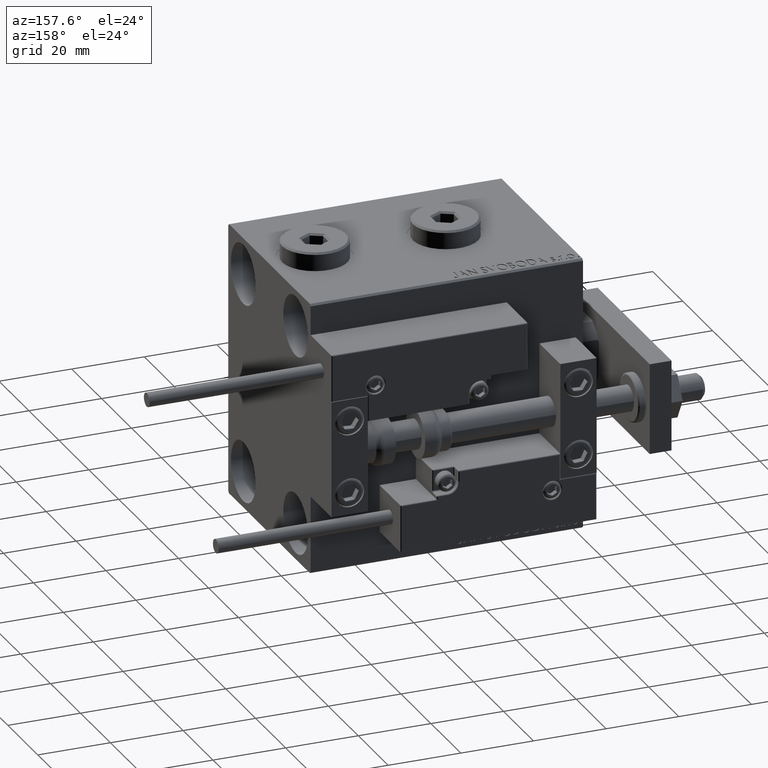
[diagram: clean part render]
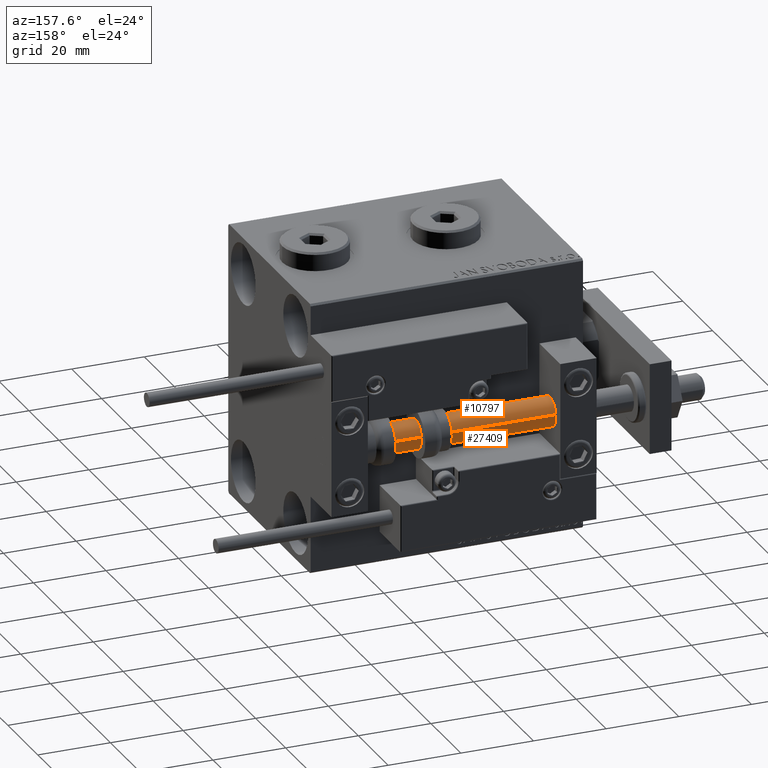
[diagram: same view with one multi-face feature highlighted, each face labeled with its STEP entity id]
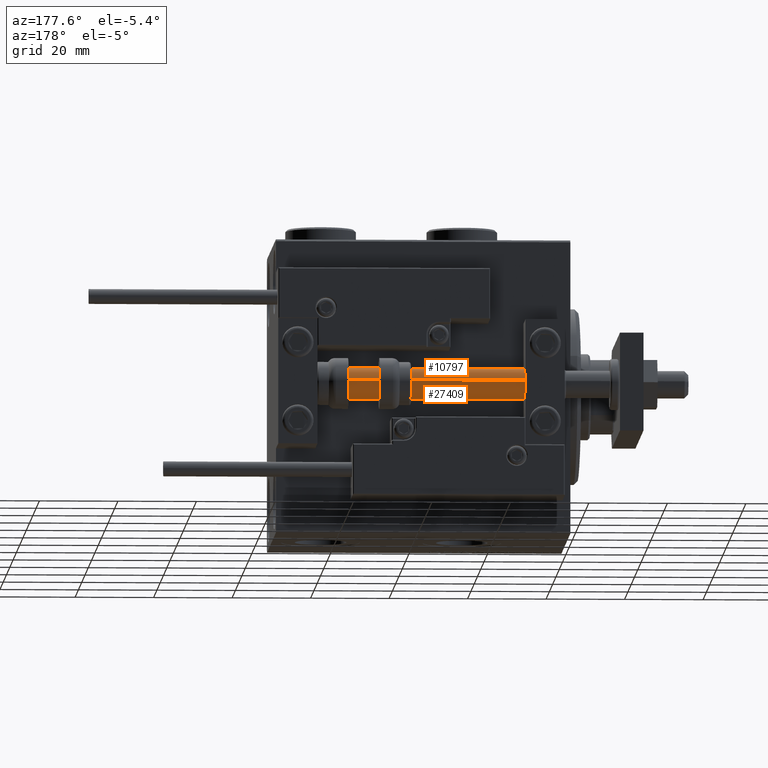
[diagram: same view with one multi-face feature highlighted, each face labeled with its STEP entity id]
A machine part, auxiliary view. The highlighted faces form ONE feature: a constant-radius fillet chain: 2 tangent blend faces with common blend radius 4 mm. The faces share edges in the B-rep.
A second angle (auxiliary view) of the same feature is appended — it is thin or edge-on in the first view.
Their STEP definitions:
[1] entity #27409 (Cylinder):
#303 = VECTOR ( 'NONE', #9148, 1000.000000000000000 ) ;
#1593 = LINE ( 'NONE', #44574, #303 ) ;
#2063 = CARTESIAN_POINT ( 'NONE',  ( 4.000000000000000000, 4.898587196589412829E-16, 75.00000000000000000 ) ) ;
#4904 = EDGE_CURVE ( 'NONE', #26406, #30613, #1593, .T. ) ;
#6351 = CARTESIAN_POINT ( 'NONE',  ( 0.000000000000000000, 0.000000000000000000, 75.00000000000000000 ) ) ;
#8411 = DIRECTION ( 'NONE',  ( 1.000000000000000000, 0.000000000000000000, 0.000000000000000000 ) ) ;
#9148 = DIRECTION ( 'NONE',  ( -0.000000000000000000, -0.000000000000000000, -1.000000000000000000 ) ) ;
#11036 = DIRECTION ( 'NONE',  ( -1.000000000000000000, 0.000000000000000000, 0.000000000000000000 ) ) ;
#13215 = CARTESIAN_POINT ( 'NONE',  ( -4.000000000000000000, 0.000000000000000000, 2.000000000000029310 ) ) ;
#13820 = EDGE_LOOP ( 'NONE', ( #25855, #17777, #14112, #36503 ) ) ;
#14112 = ORIENTED_EDGE ( 'NONE', *, *, #4904, .T. ) ;
#15429 = EDGE_CURVE ( 'NONE', #20232, #29266, #37627, .T. ) ;
#17777 = ORIENTED_EDGE ( 'NONE', *, *, #48973, .F. ) ;
#20232 = VERTEX_POINT ( 'NONE', #2063 ) ;
#21304 = CIRCLE ( 'NONE', #50478, 4.000000000000000000 ) ;
#23564 = DIRECTION ( 'NONE',  ( 1.000000000000000000, 0.000000000000000000, 0.000000000000000000 ) ) ;
#25855 = ORIENTED_EDGE ( 'NONE', *, *, #15429, .F. ) ;
#26406 = VERTEX_POINT ( 'NONE', #29521 ) ;
#26981 = CARTESIAN_POINT ( 'NONE',  ( 0.000000000000000000, 0.000000000000000000, 75.00000000000000000 ) ) ;
#27409 = ADVANCED_FACE ( 'NONE', ( #46987 ), #38116, .T. ) ;
#29266 = VERTEX_POINT ( 'NONE', #30485 ) ;
#29521 = CARTESIAN_POINT ( 'NONE',  ( -4.000000000000000000, 0.000000000000000000, 75.00000000000000000 ) ) ;
#29836 = CARTESIAN_POINT ( 'NONE',  ( 4.000000000000000000, 4.898587196589412829E-16, 75.00000000000000000 ) ) ;
#30485 = CARTESIAN_POINT ( 'NONE',  ( 4.000000000000000000, 4.898587196589412829E-16, 2.000000000000029310 ) ) ;
#30613 = VERTEX_POINT ( 'NONE', #13215 ) ;
#34981 = DIRECTION ( 'NONE',  ( -0.000000000000000000, -0.000000000000000000, -1.000000000000000000 ) ) ;
#36503 = ORIENTED_EDGE ( 'NONE', *, *, #40597, .T. ) ;
#37627 = LINE ( 'NONE', #29836, #51358 ) ;
#38116 = CYLINDRICAL_SURFACE ( 'NONE', #48655, 4.000000000000000000 ) ;
#38123 = CIRCLE ( 'NONE', #40624, 4.000000000000000000 ) ;
#39913 = CARTESIAN_POINT ( 'NONE',  ( 0.000000000000000000, 0.000000000000000000, 2.000000000000029310 ) ) ;
#40597 = EDGE_CURVE ( 'NONE', #30613, #29266, #38123, .T. ) ;
#40624 = AXIS2_PLACEMENT_3D ( 'NONE', #39913, #44110, #8411 ) ;
#41566 = DIRECTION ( 'NONE',  ( -0.000000000000000000, -0.000000000000000000, -1.000000000000000000 ) ) ;
#44110 = DIRECTION ( 'NONE',  ( -0.000000000000000000, -0.000000000000000000, 1.000000000000000000 ) ) ;
#44574 = CARTESIAN_POINT ( 'NONE',  ( -4.000000000000000000, 0.000000000000000000, 75.00000000000000000 ) ) ;
#46987 = FACE_OUTER_BOUND ( 'NONE', #13820, .T. ) ;
#48655 = AXIS2_PLACEMENT_3D ( 'NONE', #6351, #34981, #11036 ) ;
#48973 = EDGE_CURVE ( 'NONE', #26406, #20232, #21304, .T. ) ;
#50217 = DIRECTION ( 'NONE',  ( 0.000000000000000000, 0.000000000000000000, 1.000000000000000000 ) ) ;
#50478 = AXIS2_PLACEMENT_3D ( 'NONE', #26981, #50217, #23564 ) ;
#51358 = VECTOR ( 'NONE', #41566, 1000.000000000000000 ) ;
[2] entity #10797 (Cylinder):
#150 = CARTESIAN_POINT ( 'NONE',  ( 0.000000000000000000, 0.000000000000000000, 75.00000000000000000 ) ) ;
#303 = VECTOR ( 'NONE', #9148, 1000.000000000000000 ) ;
#562 = CIRCLE ( 'NONE', #51377, 4.000000000000000000 ) ;
#1187 = DIRECTION ( 'NONE',  ( -0.000000000000000000, -0.000000000000000000, -1.000000000000000000 ) ) ;
#1593 = LINE ( 'NONE', #44574, #303 ) ;
#2063 = CARTESIAN_POINT ( 'NONE',  ( 4.000000000000000000, 4.898587196589412829E-16, 75.00000000000000000 ) ) ;
#2991 = AXIS2_PLACEMENT_3D ( 'NONE', #150, #1187, #23838 ) ;
#4303 = CYLINDRICAL_SURFACE ( 'NONE', #2991, 4.000000000000000000 ) ;
#4904 = EDGE_CURVE ( 'NONE', #26406, #30613, #1593, .T. ) ;
#8835 = ORIENTED_EDGE ( 'NONE', *, *, #35084, .T. ) ;
#9148 = DIRECTION ( 'NONE',  ( -0.000000000000000000, -0.000000000000000000, -1.000000000000000000 ) ) ;
#10797 = ADVANCED_FACE ( 'NONE', ( #28523 ), #4303, .T. ) ;
#11375 = DIRECTION ( 'NONE',  ( 1.000000000000000000, 0.000000000000000000, 0.000000000000000000 ) ) ;
#12122 = DIRECTION ( 'NONE',  ( -0.000000000000000000, -0.000000000000000000, 1.000000000000000000 ) ) ;
#12203 = ORIENTED_EDGE ( 'NONE', *, *, #15429, .T. ) ;
#13215 = CARTESIAN_POINT ( 'NONE',  ( -4.000000000000000000, 0.000000000000000000, 2.000000000000029310 ) ) ;
#15429 = EDGE_CURVE ( 'NONE', #20232, #29266, #37627, .T. ) ;
#16171 = EDGE_LOOP ( 'NONE', ( #17751, #12203, #8835, #20400 ) ) ;
#16300 = EDGE_CURVE ( 'NONE', #20232, #26406, #562, .T. ) ;
#17751 = ORIENTED_EDGE ( 'NONE', *, *, #16300, .F. ) ;
#18958 = CIRCLE ( 'NONE', #35559, 4.000000000000000000 ) ;
#20232 = VERTEX_POINT ( 'NONE', #2063 ) ;
#20400 = ORIENTED_EDGE ( 'NONE', *, *, #4904, .F. ) ;
#23838 = DIRECTION ( 'NONE',  ( -1.000000000000000000, 0.000000000000000000, 0.000000000000000000 ) ) ;
#26406 = VERTEX_POINT ( 'NONE', #29521 ) ;
#28523 = FACE_OUTER_BOUND ( 'NONE', #16171, .T. ) ;
#29266 = VERTEX_POINT ( 'NONE', #30485 ) ;
#29521 = CARTESIAN_POINT ( 'NONE',  ( -4.000000000000000000, 0.000000000000000000, 75.00000000000000000 ) ) ;
#29836 = CARTESIAN_POINT ( 'NONE',  ( 4.000000000000000000, 4.898587196589412829E-16, 75.00000000000000000 ) ) ;
#29850 = DIRECTION ( 'NONE',  ( 0.000000000000000000, 0.000000000000000000, 1.000000000000000000 ) ) ;
#30485 = CARTESIAN_POINT ( 'NONE',  ( 4.000000000000000000, 4.898587196589412829E-16, 2.000000000000029310 ) ) ;
#30613 = VERTEX_POINT ( 'NONE', #13215 ) ;
#35084 = EDGE_CURVE ( 'NONE', #29266, #30613, #18958, .T. ) ;
#35559 = AXIS2_PLACEMENT_3D ( 'NONE', #47824, #12122, #11375 ) ;
#37627 = LINE ( 'NONE', #29836, #51358 ) ;
#41311 = CARTESIAN_POINT ( 'NONE',  ( 0.000000000000000000, 0.000000000000000000, 75.00000000000000000 ) ) ;
#41566 = DIRECTION ( 'NONE',  ( -0.000000000000000000, -0.000000000000000000, -1.000000000000000000 ) ) ;
#42087 = DIRECTION ( 'NONE',  ( 1.000000000000000000, 0.000000000000000000, 0.000000000000000000 ) ) ;
#44574 = CARTESIAN_POINT ( 'NONE',  ( -4.000000000000000000, 0.000000000000000000, 75.00000000000000000 ) ) ;
#47824 = CARTESIAN_POINT ( 'NONE',  ( 0.000000000000000000, 0.000000000000000000, 2.000000000000029310 ) ) ;
#51358 = VECTOR ( 'NONE', #41566, 1000.000000000000000 ) ;
#51377 = AXIS2_PLACEMENT_3D ( 'NONE', #41311, #29850, #42087 ) ;